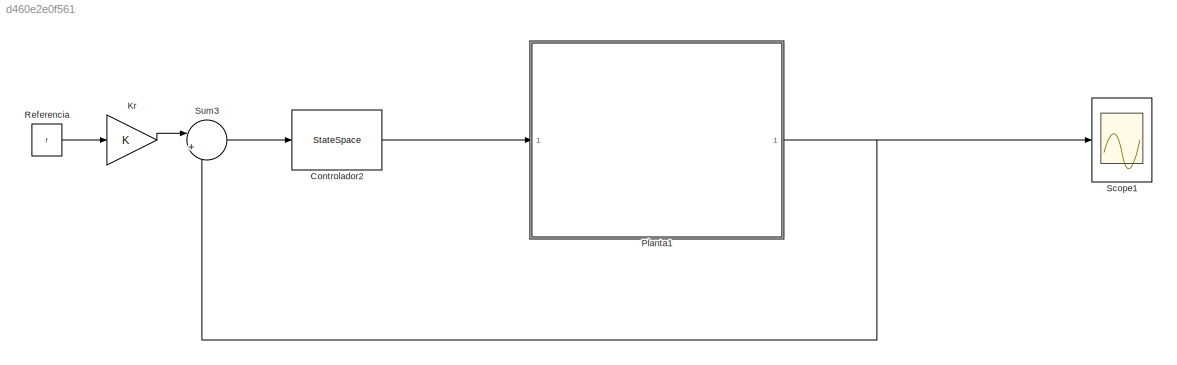
MODEL slx_d460e2e0f561
KIND model
CONFIG AbsTol = auto
CONFIG FixedStep = auto
CONFIG MaxStep = auto
CONFIG MinStep = auto
CONFIG RelTol = 1e-3
CONFIG SampleTimeConstraint = Unconstrained
CONFIG Solver = ode45
CONFIG SolverMode = Auto
CONFIG SolverName = ode45
CONFIG StartTime = 0.0
CONFIG StopTime = 10.0
BLOCK [StateSpace] Controlador2
  A = Ac
  B = Bc
  C = Cc
  D = Dc
  Ports = [1, 1]
  X0 = [0;0;0;0;0;0]
BLOCK [Gain] Kr
  OutDataTypeStr = Inherit: Inherit via internal rule
  ParamDataTypeStr = Inherit: Inherit via internal rule
  SaturateOnIntegerOverflow = off
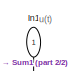
[diagram: Planta1 - part 1/2, top left region]
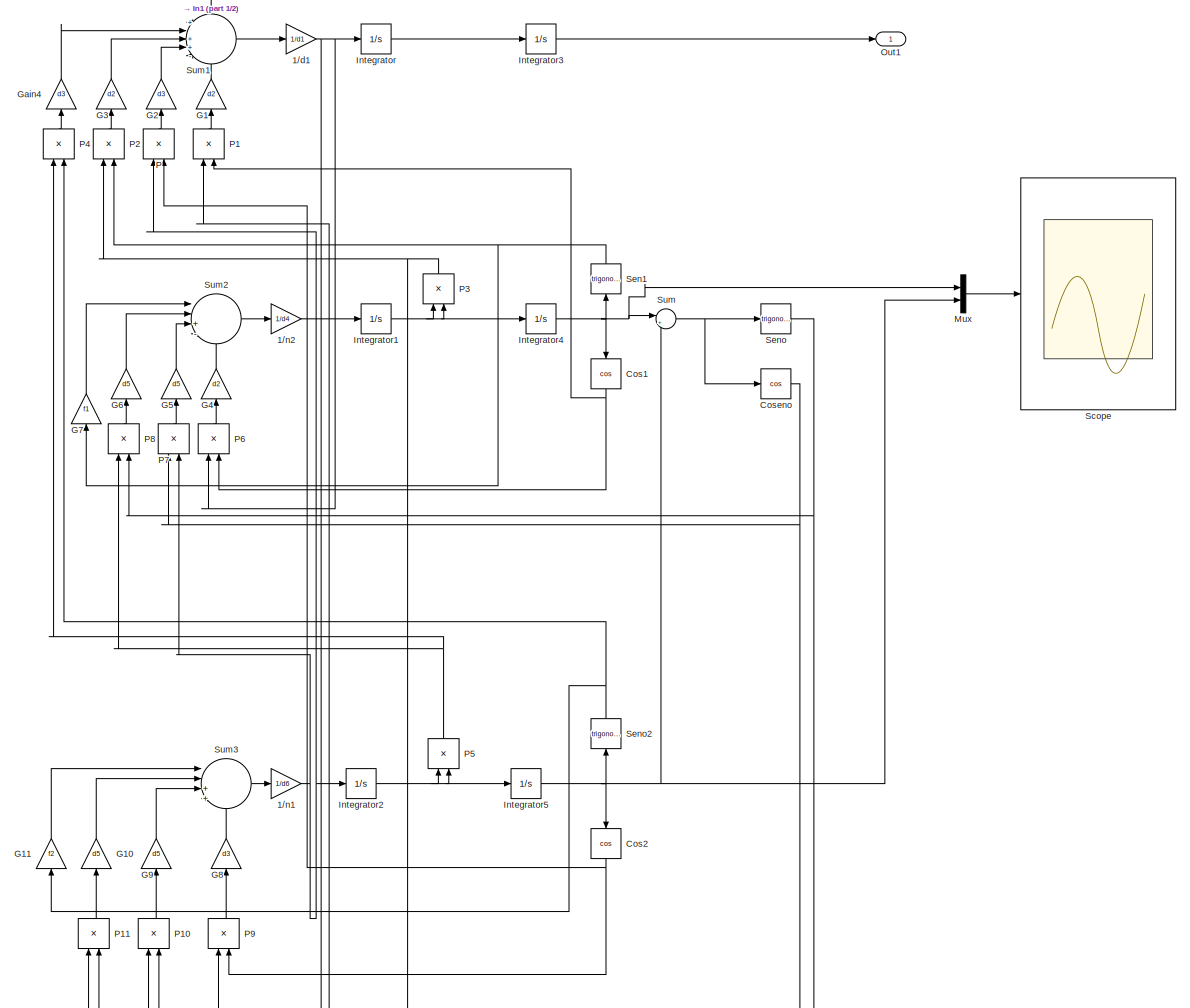
[diagram: Planta1 - part 2/2, most of the canvas]
BLOCK [SubSystem] Planta1
  Ports = [1, 1]
  RequestExecContextInheritance = off
BLOCK [Gain] Planta1/1//d1
  Gain = 1/d1
  OutDataTypeStr = Inherit: Inherit via internal rule
  ParamDataTypeStr = Inherit: Inherit via internal rule
  SaturateOnIntegerOverflow = off
BLOCK [Gain] Planta1/1//n1
  Gain = 1/d6
  OutDataTypeStr = Inherit: Inherit via internal rule
  ParamDataTypeStr = Inherit: Inherit via internal rule
  SaturateOnIntegerOverflow = off
BLOCK [Gain] Planta1/1//n2
  Gain = 1/d4
  OutDataTypeStr = Inherit: Inherit via internal rule
  ParamDataTypeStr = Inherit: Inherit via internal rule
  SaturateOnIntegerOverflow = off
BLOCK [Trigonometry] Planta1/Cos1
  Operator = cos
  Ports = [1, 1]
BLOCK [Trigonometry] Planta1/Cos2
  Operator = cos
  Ports = [1, 1]
BLOCK [Trigonometry] Planta1/Coseno
  Operator = cos
  Ports = [1, 1]
BLOCK [Gain] Planta1/G1
  Gain = d2
  OutDataTypeStr = Inherit: Inherit via internal rule
  ParamDataTypeStr = Inherit: Inherit via internal rule
  SaturateOnIntegerOverflow = off
BLOCK [Gain] Planta1/G10
  Gain = d5
  OutDataTypeStr = Inherit: Inherit via internal rule
  ParamDataTypeStr = Inherit: Inherit via internal rule
  SaturateOnIntegerOverflow = off
BLOCK [Gain] Planta1/G11
  Gain = f2
  OutDataTypeStr = Inherit: Inherit via internal rule
  ParamDataTypeStr = Inherit: Inherit via internal rule
  SaturateOnIntegerOverflow = off
BLOCK [Gain] Planta1/G2
  Gain = d3
  OutDataTypeStr = Inherit: Inherit via internal rule
  ParamDataTypeStr = Inherit: Inherit via internal rule
  SaturateOnIntegerOverflow = off
BLOCK [Gain] Planta1/G3
  Gain = d2
  OutDataTypeStr = Inherit: Inherit via internal rule
  ParamDataTypeStr = Inherit: Inherit via internal rule
  SaturateOnIntegerOverflow = off
BLOCK [Gain] Planta1/G4
  Gain = d2
  OutDataTypeStr = Inherit: Inherit via internal rule
  ParamDataTypeStr = Inherit: Inherit via internal rule
  SaturateOnIntegerOverflow = off
BLOCK [Gain] Planta1/G5
  Gain = d5
  OutDataTypeStr = Inherit: Inherit via internal rule
  ParamDataTypeStr = Inherit: Inherit via internal rule
  SaturateOnIntegerOverflow = off
BLOCK [Gain] Planta1/G6
  Gain = d5
  OutDataTypeStr = Inherit: Inherit via internal rule
  ParamDataTypeStr = Inherit: Inherit via internal rule
  SaturateOnIntegerOverflow = off
BLOCK [Gain] Planta1/G7
  Gain = f1
  OutDataTypeStr = Inherit: Inherit via internal rule
  ParamDataTypeStr = Inherit: Inherit via internal rule
  SaturateOnIntegerOverflow = off
BLOCK [Gain] Planta1/G8
  Gain = d3
  OutDataTypeStr = Inherit: Inherit via internal rule
  ParamDataTypeStr = Inherit: Inherit via internal rule
  SaturateOnIntegerOverflow = off
BLOCK [Gain] Planta1/G9
  Gain = d5
  OutDataTypeStr = Inherit: Inherit via internal rule
  ParamDataTypeStr = Inherit: Inherit via internal rule
  SaturateOnIntegerOverflow = off
BLOCK [Gain] Planta1/Gain4
  Gain = d3
  OutDataTypeStr = Inherit: Inherit via internal rule
  ParamDataTypeStr = Inherit: Inherit via internal rule
  SaturateOnIntegerOverflow = off
BLOCK [Inport] Planta1/In1
  IconDisplay = Port number
BLOCK [Integrator] Planta1/Integrator
  Ports = [1, 1]
BLOCK [Integrator] Planta1/Integrator1
  Ports = [1, 1]
BLOCK [Integrator] Planta1/Integrator2
  Ports = [1, 1]
BLOCK [Integrator] Planta1/Integrator3
  Ports = [1, 1]
BLOCK [Integrator] Planta1/Integrator4
  InitialCondition = pi
  Ports = [1, 1]
BLOCK [Integrator] Planta1/Integrator5
  InitialCondition = pi
  Ports = [1, 1]
BLOCK [Mux] Planta1/Mux
  DisplayOption = bar
  Inputs = 2
  Ports = [2, 1]
BLOCK [Outport] Planta1/Out1
  IconDisplay = Port number
BLOCK [Product] Planta1/P
  InputSameDT = off
  OutDataTypeStr = Inherit: Inherit via internal rule
  Ports = [2, 1]
  RndMeth = Floor
  SaturateOnIntegerOverflow = off
BLOCK [Product] Planta1/P1
  InputSameDT = off
  OutDataTypeStr = Inherit: Inherit via internal rule
  Ports = [2, 1]
  RndMeth = Floor
  SaturateOnIntegerOverflow = off
BLOCK [Product] Planta1/P10
  InputSameDT = off
  OutDataTypeStr = Inherit: Inherit via internal rule
  Ports = [2, 1]
  RndMeth = Floor
  SaturateOnIntegerOverflow = off
BLOCK [Product] Planta1/P11
  InputSameDT = off
  OutDataTypeStr = Inherit: Inherit via internal rule
  Ports = [2, 1]
  RndMeth = Floor
  SaturateOnIntegerOverflow = off
BLOCK [Product] Planta1/P2
  InputSameDT = off
  OutDataTypeStr = Inherit: Inherit via internal rule
  Ports = [2, 1]
  RndMeth = Floor
  SaturateOnIntegerOverflow = off
BLOCK [Product] Planta1/P3
  InputSameDT = off
  OutDataTypeStr = Inherit: Inherit via internal rule
  Ports = [2, 1]
  RndMeth = Floor
  SaturateOnIntegerOverflow = off
BLOCK [Product] Planta1/P4
  InputSameDT = off
  OutDataTypeStr = Inherit: Inherit via internal rule
  Ports = [2, 1]
  RndMeth = Floor
  SaturateOnIntegerOverflow = off
BLOCK [Product] Planta1/P5
  InputSameDT = off
  OutDataTypeStr = Inherit: Inherit via internal rule
  Ports = [2, 1]
  RndMeth = Floor
  SaturateOnIntegerOverflow = off
BLOCK [Product] Planta1/P6
  InputSameDT = off
  OutDataTypeStr = Inherit: Inherit via internal rule
  Ports = [2, 1]
  RndMeth = Floor
  SaturateOnIntegerOverflow = off
BLOCK [Product] Planta1/P7
  InputSameDT = off
  OutDataTypeStr = Inherit: Inherit via internal rule
  Ports = [2, 1]
  RndMeth = Floor
  SaturateOnIntegerOverflow = off
BLOCK [Product] Planta1/P8
  InputSameDT = off
  OutDataTypeStr = Inherit: Inherit via internal rule
  Ports = [2, 1]
  RndMeth = Floor
  SaturateOnIntegerOverflow = off
BLOCK [Product] Planta1/P9
  InputSameDT = off
  OutDataTypeStr = Inherit: Inherit via internal rule
  Ports = [2, 1]
  RndMeth = Floor
  SaturateOnIntegerOverflow = off
BLOCK [Scope] Planta1/Scope
  Floating = off
  LegendLocations = 0.89861     0.92179    0.075188    0.044226
  LimitDataPoints = off
  NumInputPorts = 1
  Ports = [1]
  SaveName = ScopeData1
  ShowLegends = on
BLOCK [Trigonometry] Planta1/Sen1
  Ports = [1, 1]
BLOCK [Trigonometry] Planta1/Seno
  Ports = [1, 1]
BLOCK [Trigonometry] Planta1/Seno2
  Ports = [1, 1]
BLOCK [Sum] Planta1/Sum
  IconShape = round
  InputSameDT = off
  Inputs = |+-
  OutDataTypeStr = Inherit: Inherit via internal rule
  Ports = [2, 1]
  SaturateOnIntegerOverflow = off
BLOCK [Sum] Planta1/Sum1
  IconShape = round
  InputSameDT = off
  Inputs = +|++-|-
  OutDataTypeStr = Inherit: Inherit via internal rule
  Ports = [5, 1]
  SaturateOnIntegerOverflow = off
BLOCK [Sum] Planta1/Sum2
  IconShape = round
  InputSameDT = off
  Inputs = ||+--|-
  OutDataTypeStr = Inherit: Inherit via internal rule
  Ports = [4, 1]
  SaturateOnIntegerOverflow = off
BLOCK [Sum] Planta1/Sum3
  IconShape = round
  InputSameDT = off
  Inputs = ||++-|-
  OutDataTypeStr = Inherit: Inherit via internal rule
  Ports = [4, 1]
  SaturateOnIntegerOverflow = off
BLOCK [Constant] Referencia
  Value = r
BLOCK [Scope] Scope1
  DataFormat = StructureWithTime
  Floating = off
  LimitDataPoints = off
  NumInputPorts = 1
  Ports = [1]
  SampleTime = 0
  SaveName = ScopeData2
  TimeRange = 10
  YMax = -21350
  YMin = -21950
  ZoomMode = yonly
BLOCK [Sum] Sum3
  IconShape = round
  InputSameDT = off
  Inputs = |+-
  OutDataTypeStr = Inherit: Inherit via internal rule
  Ports = [2, 1]
  SaturateOnIntegerOverflow = off
ANNOTATION Planta1: u(t)
LINE Controlador2:1 -> Planta1:1
LINE Kr:1 -> Sum3:1
NET Planta1/1//d1:1 -> Planta1/Integrator:1, Planta1/P6:1, Planta1/P9:1
NET Planta1/1//n1:1 -> Planta1/Integrator2:1, Planta1/P7:2, Planta1/P:1
NET Planta1/1//n2:1 -> Planta1/Integrator1:1, Planta1/P10:1, Planta1/P1:1
NET Planta1/Cos1:1 -> Planta1/P1:2, Planta1/P6:2
NET Planta1/Cos2:1 -> Planta1/P9:2, Planta1/P:2
NET Planta1/Coseno:1 -> Planta1/P10:2, Planta1/P7:1
LINE Planta1/G10:1 -> Planta1/Sum3:2
LINE Planta1/G11:1 -> Planta1/Sum3:1
LINE Planta1/G1:1 -> Planta1/Sum1:5
LINE Planta1/G2:1 -> Planta1/Sum1:4
LINE Planta1/G3:1 -> Planta1/Sum1:3
LINE Planta1/G4:1 -> Planta1/Sum2:4
LINE Planta1/G5:1 -> Planta1/Sum2:3
LINE Planta1/G6:1 -> Planta1/Sum2:2
LINE Planta1/G7:1 -> Planta1/Sum2:1
LINE Planta1/G8:1 -> Planta1/Sum3:4
LINE Planta1/G9:1 -> Planta1/Sum3:3
LINE Planta1/Gain4:1 -> Planta1/Sum1:2
LINE Planta1/In1:1 -> Planta1/Sum1:1
NET Planta1/Integrator1:1 -> Planta1/Integrator4:1, Planta1/P3:1, Planta1/P3:2
NET Planta1/Integrator2:1 -> Planta1/Integrator5:1, Planta1/P5:1, Planta1/P5:2
LINE Planta1/Integrator3:1 -> Planta1/Out1:1
NET Planta1/Integrator4:1 -> Planta1/Cos1:1, Planta1/Mux:1, Planta1/Sen1:1, Planta1/Sum:1
NET Planta1/Integrator5:1 -> Planta1/Cos2:1, Planta1/Mux:2, Planta1/Seno2:1, Planta1/Sum:2
LINE Planta1/Integrator:1 -> Planta1/Integrator3:1
LINE Planta1/Mux:1 -> Planta1/Scope:1
LINE Planta1/P10:1 -> Planta1/G9:1
LINE Planta1/P11:1 -> Planta1/G10:1
LINE Planta1/P1:1 -> Planta1/G1:1
LINE Planta1/P2:1 -> Planta1/G3:1
NET Planta1/P3:1 -> Planta1/P11:1, Planta1/P2:1
LINE Planta1/P4:1 -> Planta1/Gain4:1
NET Planta1/P5:1 -> Planta1/P4:1, Planta1/P8:1
LINE Planta1/P6:1 -> Planta1/G4:1
LINE Planta1/P7:1 -> Planta1/G5:1
LINE Planta1/P8:1 -> Planta1/G6:1
LINE Planta1/P9:1 -> Planta1/G8:1
LINE Planta1/P:1 -> Planta1/G2:1
NET Planta1/Sen1:1 -> Planta1/G7:1, Planta1/P2:2
NET Planta1/Seno2:1 -> Planta1/G11:1, Planta1/P4:2
NET Planta1/Seno:1 -> Planta1/P11:2, Planta1/P8:2
LINE Planta1/Sum1:1 -> Planta1/1//d1:1
LINE Planta1/Sum2:1 -> Planta1/1//n2:1
LINE Planta1/Sum3:1 -> Planta1/1//n1:1
NET Planta1/Sum:1 -> Planta1/Coseno:1, Planta1/Seno:1
NET Planta1:1 -> Scope1:1, Sum3:2
LINE Referencia:1 -> Kr:1
LINE Sum3:1 -> Controlador2:1
note: NET lines group one-source signal fan-out (src -> all destinations, sorted); 1:1 wires keep LINE
